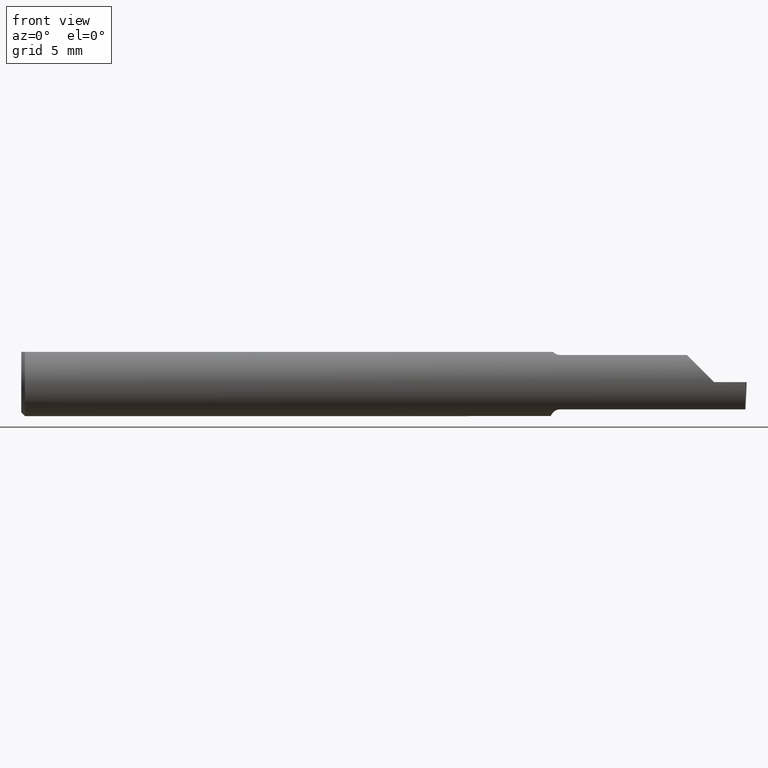
[diagram: clean part render]
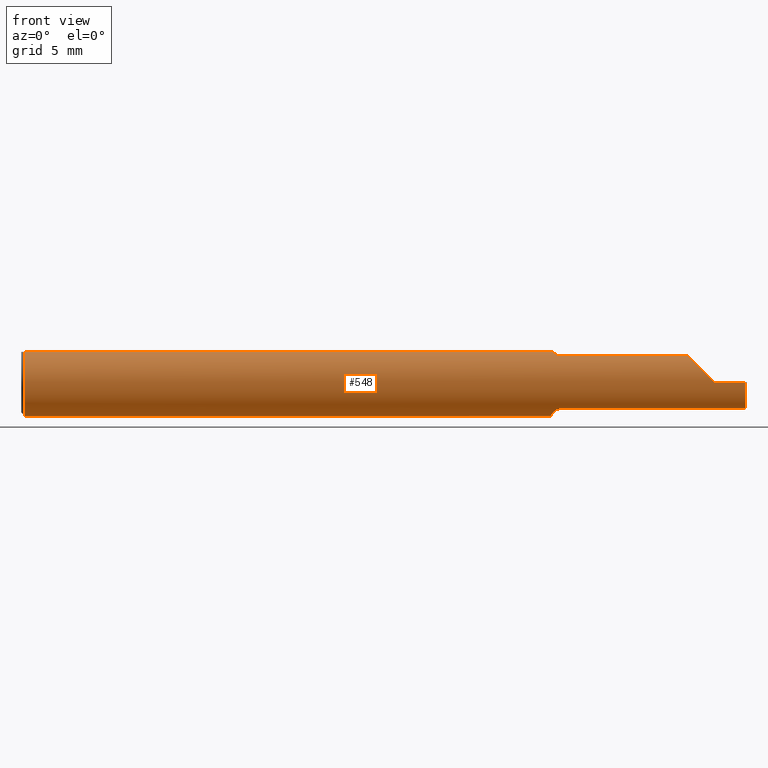
[diagram: same view with one face highlighted and labeled with its STEP entity id]
A machine part, front view. The second image highlights one B-rep face of the part: STEP entity #548.
In plain terms, the highlighted cylindrical surface (edge-blend (fillet) strip) has radius 2.3774 mm, axis along (-1, -0, -0).
Its self-contained STEP definition (entity closure, byte-faithful):
#3 = ORIENTED_EDGE ( 'NONE', *, *, #503, .F. ) ;
#4 = CARTESIAN_POINT ( 'NONE',  ( 1.459999999999999964, -0.006757276995305246635, -0.09335576686851605743 ) ) ;
#8 = DIRECTION ( 'NONE',  ( 1.000000000000000000, 0.000000000000000000, 0.000000000000000000 ) ) ;
#13 = DIRECTION ( 'NONE',  ( 1.000000000000000000, 0.000000000000000000, 0.000000000000000000 ) ) ;
#19 = CARTESIAN_POINT ( 'NONE',  ( 1.475047675231717204, -0.05464443219068155361, -0.07601042893068199469 ) ) ;
#26 = CARTESIAN_POINT ( 'NONE',  ( 1.468379054196076394, -0.04728090127810220811, -0.08090622725813378935 ) ) ;
#28 = VERTEX_POINT ( 'NONE', #691 ) ;
#37 = CARTESIAN_POINT ( 'NONE',  ( 1.484999999999999876, -0.05810704225352104207, 0.07337936794867834511 ) ) ;
#38 = CARTESIAN_POINT ( 'NONE',  ( 1.836620632051321200, -0.05810704225352102820, 0.07337936794867834511 ) ) ;
#39 = VERTEX_POINT ( 'NONE', #684 ) ;
#42 = VECTOR ( 'NONE', #613, 39.37007874015748143 ) ;
#48 = ORIENTED_EDGE ( 'NONE', *, *, #127, .T. ) ;
#63 = CARTESIAN_POINT ( 'NONE',  ( 2.999519565323742037E-32, -0.09359999999999998876, 2.449293598294716768E-16 ) ) ;
#70 = VERTEX_POINT ( 'NONE', #697 ) ;
#74 = EDGE_CURVE ( 'NONE', #268, #110, #217, .T. ) ;
#83 =( BOUNDED_CURVE ( )  B_SPLINE_CURVE ( 3, ( #108, #112, #445, #554 ),
 .UNSPECIFIED., .F., .T. ) 
 B_SPLINE_CURVE_WITH_KNOTS ( ( 4, 4 ),
 ( 0.2063001339125308253, 1.107331509589561058 ),
 .UNSPECIFIED. ) 
 CURVE ( )  GEOMETRIC_REPRESENTATION_ITEM ( )  RATIONAL_B_SPLINE_CURVE ( ( 1.000000000000000000, 0.9334817841311873199, 0.9334817841311873199, 1.000000000000000000 ) ) 
 REPRESENTATION_ITEM ( '' )  );
#90 = CARTESIAN_POINT ( 'NONE',  ( 1.480292432600753827, -0.05747478081012627471, 0.07388601572377852256 ) ) ;
#93 = ORIENTED_EDGE ( 'NONE', *, *, #156, .T. ) ;
#94 = CARTESIAN_POINT ( 'NONE',  ( 1.470033121973953527, -0.04963861219531613689, 0.07943694244057658560 ) ) ;
#95 = B_SPLINE_CURVE_WITH_KNOTS ( 'NONE', 3,
 ( #269, #328, #94, #200, #205, #90, #317, #37 ),
 .UNSPECIFIED., .F., .F.,
 ( 4, 2, 2, 4 ),
 ( 4.741820243497489681E-07, 0.0003579866703973862293, 0.0005367429145838981900, 0.0007154991587704100965 ),
 .UNSPECIFIED. ) ;
#104 = CARTESIAN_POINT ( 'NONE',  ( 0.000000000000000000, -0.04209513035969864037, 0.08359999999999988274 ) ) ;
#107 = LINE ( 'NONE', #63, #430 ) ;
#108 = CARTESIAN_POINT ( 'NONE',  ( 1.994999172194938941, -0.05810704225352106983, -0.07337936794867833123 ) ) ;
#110 = VERTEX_POINT ( 'NONE', #177 ) ;
#112 = CARTESIAN_POINT ( 'NONE',  ( 1.995231968854677573, -0.08092595952420823802, -0.05530971394246247952 ) ) ;
#123 = VERTEX_POINT ( 'NONE', #459 ) ;
#124 = CARTESIAN_POINT ( 'NONE',  ( 1.994999172194938941, -0.05810704225352106983, -0.07337936794867833123 ) ) ;
#126 = B_SPLINE_CURVE_WITH_KNOTS ( 'NONE', 3,
 ( #132, #314, #664, #19, #411, #26, #465, #358, #256, #567, #299, #417 ),
 .UNSPECIFIED., .F., .F.,
 ( 4, 2, 2, 2, 2, 4 ),
 ( 1.968126669309073504E-07, 0.0002104342718631983333, 0.0004206717310594657966, 0.0008411466494519999641, 0.001261621567844534294, 0.001682096486237068516 ),
 .UNSPECIFIED. ) ;
#127 = EDGE_CURVE ( 'NONE', #565, #28, #83, .T. ) ;
#129 = ORIENTED_EDGE ( 'NONE', *, *, #419, .T. ) ;
#132 = CARTESIAN_POINT ( 'NONE',  ( 1.484999999999999876, -0.05810704225352104901, -0.07337936794867834511 ) ) ;
#145 = AXIS2_PLACEMENT_3D ( 'NONE', #193, #517, #672 ) ;
#155 = AXIS2_PLACEMENT_3D ( 'NONE', #342, #13, #275 ) ;
#156 = EDGE_CURVE ( 'NONE', #268, #694, #165, .T. ) ;
#165 = CIRCLE ( 'NONE', #264, 0.09360000000000001652 ) ;
#169 = ORIENTED_EDGE ( 'NONE', *, *, #218, .F. ) ;
#177 = CARTESIAN_POINT ( 'NONE',  ( 1.466129652885479473, -0.04209513035970116612, 0.08359999999999991049 ) ) ;
#184 = EDGE_CURVE ( 'NONE', #565, #39, #335, .T. ) ;
#186 = CARTESIAN_POINT ( 'NONE',  ( 1.733740805000000051, -0.05810704225352107677, 0.07337936794867833123 ) ) ;
#193 = CARTESIAN_POINT ( 'NONE',  ( 1.459999999999999964, 0.000000000000000000, 0.000000000000000000 ) ) ;
#200 = CARTESIAN_POINT ( 'NONE',  ( 1.474565501274438306, -0.05415466354550839412, 0.07636456853488576835 ) ) ;
#205 = CARTESIAN_POINT ( 'NONE',  ( 1.476308147845286189, -0.05549979236676341743, 0.07538081185522380046 ) ) ;
#212 = CARTESIAN_POINT ( 'NONE',  ( 1.880893035518782730, -0.09359999999999997489, 0.02910696448121682239 ) ) ;
#217 = LINE ( 'NONE', #104, #475 ) ;
#218 = EDGE_CURVE ( 'NONE', #485, #123, #574, .T. ) ;
#223 = DIRECTION ( 'NONE',  ( 0.000000000000000000, 0.000000000000000000, 1.000000000000000000 ) ) ;
#224 = CIRCLE ( 'NONE', #155, 0.09360000000000001652 ) ;
#227 = EDGE_CURVE ( 'NONE', #39, #590, #126, .T. ) ;
#252 = EDGE_CURVE ( 'NONE', #70, #407, #366, .T. ) ;
#256 = CARTESIAN_POINT ( 'NONE',  ( 1.461762116932663336, -0.02818790137206265284, -0.08941930521177111901 ) ) ;
#264 = AXIS2_PLACEMENT_3D ( 'NONE', #282, #8, #399 ) ;
#268 = VERTEX_POINT ( 'NONE', #363 ) ;
#269 = CARTESIAN_POINT ( 'NONE',  ( 1.466129652885479473, -0.04209513035970116612, 0.08359999999999991049 ) ) ;
#272 = CARTESIAN_POINT ( 'NONE',  ( 1.854690286057536941, -0.08092595952420821026, 0.05530971394246249340 ) ) ;
#275 = DIRECTION ( 'NONE',  ( 0.000000000000000000, 0.000000000000000000, -1.000000000000000000 ) ) ;
#280 = CYLINDRICAL_SURFACE ( 'NONE', #418, 0.09360000000000001652 ) ;
#282 = CARTESIAN_POINT ( 'NONE',  ( 0.01000000000000016674, 0.000000000000000000, 0.000000000000000000 ) ) ;
#299 = CARTESIAN_POINT ( 'NONE',  ( 1.459999999999999964, -0.01220003991882283832, -0.09296180880970876526 ) ) ;
#314 = CARTESIAN_POINT ( 'NONE',  ( 1.482196475348975140, -0.05810704225352104901, -0.07337936794867837287 ) ) ;
#317 = CARTESIAN_POINT ( 'NONE',  ( 1.482603832840145852, -0.05810704225352100044, 0.07337936794867837287 ) ) ;
#322 = ORIENTED_EDGE ( 'NONE', *, *, #600, .T. ) ;
#328 = CARTESIAN_POINT ( 'NONE',  ( 1.467870098798738088, -0.04602557371825106297, 0.08162090280442944878 ) ) ;
#332 = EDGE_LOOP ( 'NONE', ( #547, #48, #519, #129, #169, #3, #368, #93, #322, #679, #556, #639 ) ) ;
#335 = LINE ( 'NONE', #657, #537 ) ;
#337 = DIRECTION ( 'NONE',  ( -1.000000000000000000, -0.000000000000000000, -0.000000000000000000 ) ) ;
#342 = CARTESIAN_POINT ( 'NONE',  ( 0.01000000000000016674, 0.000000000000000000, 0.000000000000000000 ) ) ;
#358 = CARTESIAN_POINT ( 'NONE',  ( 1.462856118429613828, -0.03323074941465640336, -0.08766015375840491286 ) ) ;
#363 = CARTESIAN_POINT ( 'NONE',  ( 0.01000000000000016674, -0.04209513035969864037, 0.08359999999999988274 ) ) ;
#366 = LINE ( 'NONE', #521, #466 ) ;
#368 = ORIENTED_EDGE ( 'NONE', *, *, #74, .F. ) ;
#369 = CARTESIAN_POINT ( 'NONE',  ( 1.484999999999999876, -0.05810704225352104207, 0.07337936794867834511 ) ) ;
#399 = DIRECTION ( 'NONE',  ( 0.000000000000000000, 0.000000000000000000, -1.000000000000000000 ) ) ;
#407 = VERTEX_POINT ( 'NONE', #683 ) ;
#411 = CARTESIAN_POINT ( 'NONE',  ( 1.473195691242755956, -0.05295078397730242081, -0.07721567059148473633 ) ) ;
#417 = CARTESIAN_POINT ( 'NONE',  ( 1.459999999999999964, -0.006757276995305246635, -0.09335576686851605743 ) ) ;
#418 = AXIS2_PLACEMENT_3D ( 'NONE', #560, #444, #223 ) ;
#419 = EDGE_CURVE ( 'NONE', #671, #123, #479, .T. ) ;
#430 = VECTOR ( 'NONE', #337, 39.37007874015748143 ) ;
#444 = DIRECTION ( 'NONE',  ( -1.000000000000000000, -0.000000000000000000, -0.000000000000000000 ) ) ;
#445 = CARTESIAN_POINT ( 'NONE',  ( 1.995925902212489333, -0.09359999999999997489, -0.02910696448121682933 ) ) ;
#458 = FACE_OUTER_BOUND ( 'NONE', #332, .T. ) ;
#459 = CARTESIAN_POINT ( 'NONE',  ( 1.836620632051321200, -0.05810704225352102820, 0.07337936794867834511 ) ) ;
#465 = CARTESIAN_POINT ( 'NONE',  ( 1.466206319820905213, -0.04283575577410227847, -0.08338874798717356429 ) ) ;
#466 = VECTOR ( 'NONE', #564, 39.37007874015748143 ) ;
#475 = VECTOR ( 'NONE', #561, 39.37007874015748143 ) ;
#479 =( BOUNDED_CURVE ( )  B_SPLINE_CURVE ( 3, ( #689, #212, #272, #38 ),
 .UNSPECIFIED., .F., .F. ) 
 B_SPLINE_CURVE_WITH_KNOTS ( ( 4, 4 ),
 ( 4.712388980384689674, 5.613420356061720184 ),
 .UNSPECIFIED. ) 
 CURVE ( )  GEOMETRIC_REPRESENTATION_ITEM ( )  RATIONAL_B_SPLINE_CURVE ( ( 1.000000000000000000, 0.9334817841311873199, 0.9334817841311873199, 1.000000000000000000 ) ) 
 REPRESENTATION_ITEM ( '' )  );
#485 = VERTEX_POINT ( 'NONE', #369 ) ;
#503 = EDGE_CURVE ( 'NONE', #110, #485, #95, .T. ) ;
#515 = EDGE_CURVE ( 'NONE', #28, #671, #107, .T. ) ;
#517 = DIRECTION ( 'NONE',  ( 1.000000000000000000, 3.267875774690260159E-17, 0.000000000000000000 ) ) ;
#519 = ORIENTED_EDGE ( 'NONE', *, *, #515, .T. ) ;
#521 = CARTESIAN_POINT ( 'NONE',  ( 0.000000000000000000, 0.04209513035969864037, 0.08359999999999988274 ) ) ;
#537 = VECTOR ( 'NONE', #603, 39.37007874015748143 ) ;
#547 = ORIENTED_EDGE ( 'NONE', *, *, #184, .F. ) ;
#548 = ADVANCED_FACE ( 'NONE', ( #458 ), #280, .T. ) ;
#554 = CARTESIAN_POINT ( 'NONE',  ( 1.996942494641693600, -0.09360000000000001652, 0.000000000000000000 ) ) ;
#556 = ORIENTED_EDGE ( 'NONE', *, *, #674, .F. ) ;
#560 = CARTESIAN_POINT ( 'NONE',  ( 0.000000000000000000, 0.000000000000000000, 0.000000000000000000 ) ) ;
#561 = DIRECTION ( 'NONE',  ( 1.000000000000000000, 0.000000000000000000, 0.000000000000000000 ) ) ;
#564 = DIRECTION ( 'NONE',  ( -1.000000000000000000, -0.000000000000000000, -0.000000000000000000 ) ) ;
#565 = VERTEX_POINT ( 'NONE', #124 ) ;
#567 = CARTESIAN_POINT ( 'NONE',  ( 1.460323329158490946, -0.01767221859896418376, -0.09207639555340681181 ) ) ;
#574 = LINE ( 'NONE', #186, #42 ) ;
#587 = CIRCLE ( 'NONE', #145, 0.09360000000000001652 ) ;
#590 = VERTEX_POINT ( 'NONE', #4 ) ;
#600 = EDGE_CURVE ( 'NONE', #694, #407, #224, .T. ) ;
#603 = DIRECTION ( 'NONE',  ( -1.000000000000000000, -3.267875774690260159E-17, -0.000000000000000000 ) ) ;
#613 = DIRECTION ( 'NONE',  ( 1.000000000000000000, 3.267875774690260159E-17, 0.000000000000000000 ) ) ;
#625 = CARTESIAN_POINT ( 'NONE',  ( 0.01000000000000016674, 0.000000000000000000, -0.09360000000000001652 ) ) ;
#639 = ORIENTED_EDGE ( 'NONE', *, *, #227, .F. ) ;
#657 = CARTESIAN_POINT ( 'NONE',  ( 1.733740805000000051, -0.05810704225352107677, -0.07337936794867833123 ) ) ;
#664 = CARTESIAN_POINT ( 'NONE',  ( 1.479541435880793676, -0.05724930034136796464, -0.07406832579512041825 ) ) ;
#667 = CARTESIAN_POINT ( 'NONE',  ( 1.910000000000000142, -0.09360000000000005815, 1.102182119232621301E-17 ) ) ;
#671 = VERTEX_POINT ( 'NONE', #667 ) ;
#672 = DIRECTION ( 'NONE',  ( 0.000000000000000000, 1.000000000000000000, 0.000000000000000000 ) ) ;
#674 = EDGE_CURVE ( 'NONE', #590, #70, #587, .T. ) ;
#679 = ORIENTED_EDGE ( 'NONE', *, *, #252, .F. ) ;
#683 = CARTESIAN_POINT ( 'NONE',  ( 0.01000000000000016674, 0.04209513035969864037, 0.08359999999999988274 ) ) ;
#684 = CARTESIAN_POINT ( 'NONE',  ( 1.484999999999999876, -0.05810704225352104901, -0.07337936794867834511 ) ) ;
#689 = CARTESIAN_POINT ( 'NONE',  ( 1.910000000000000142, -0.09360000000000005815, 1.102182119232621301E-17 ) ) ;
#691 = CARTESIAN_POINT ( 'NONE',  ( 1.996942494641693600, -0.09360000000000001652, 0.000000000000000000 ) ) ;
#694 = VERTEX_POINT ( 'NONE', #625 ) ;
#697 = CARTESIAN_POINT ( 'NONE',  ( 1.459999999999999964, 0.04209513035969864037, 0.08359999999999988274 ) ) ;